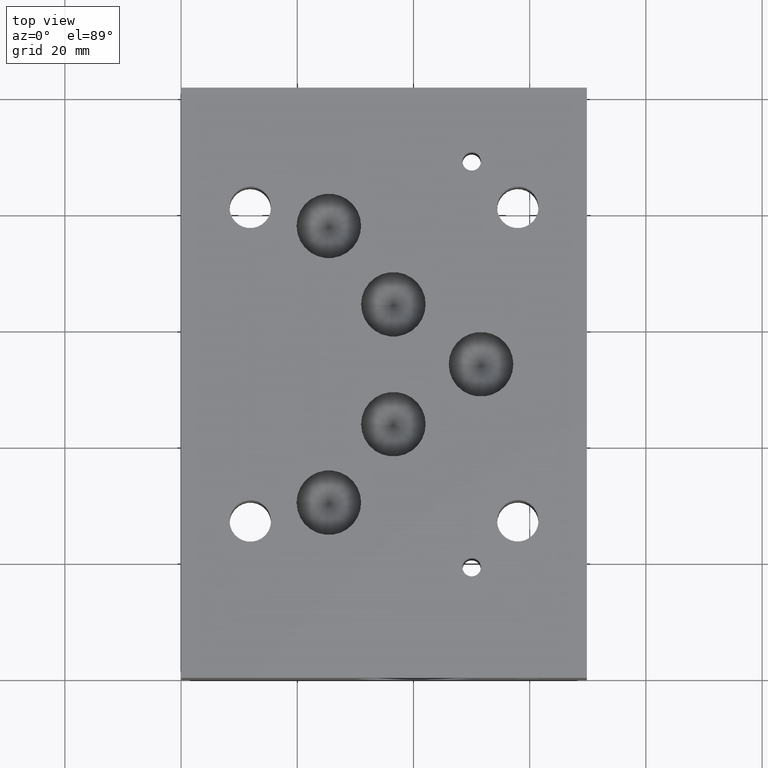
[diagram: clean part render]
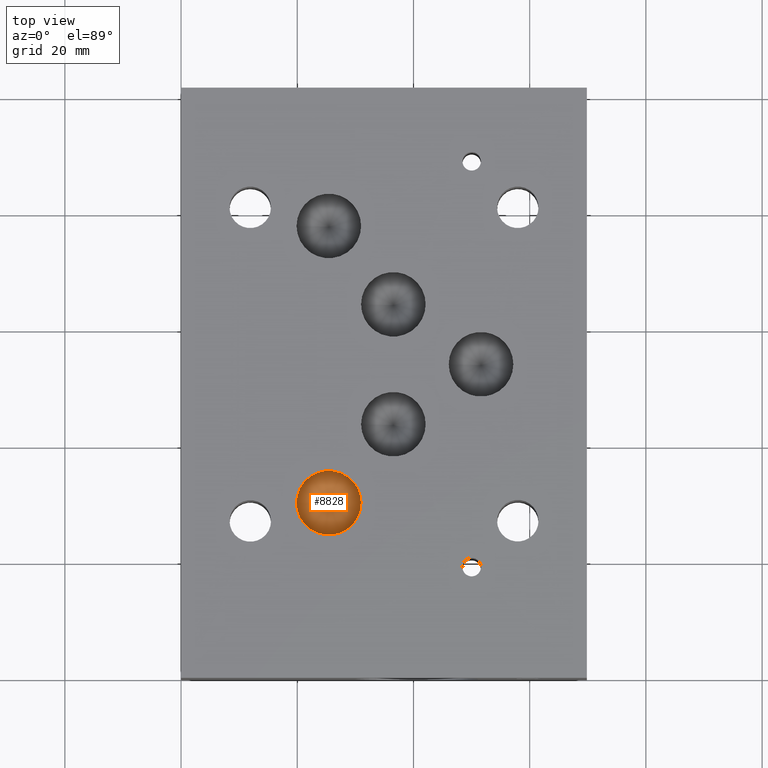
[diagram: same view with one face highlighted and labeled with its STEP entity id]
A machine part, top view. The second image highlights one B-rep face of the part: STEP entity #8828.
In plain terms, the highlighted conical surface has half-angle 60 deg.
Its self-contained STEP definition (entity closure, byte-faithful):
#67=CONICAL_SURFACE('',#9283,2.778125,1.0471975511966);
#143=CIRCLE('',#9284,5.55625);
#977=FACE_OUTER_BOUND('',#1496,.T.);
#1496=EDGE_LOOP('',(#7870,#7871,#7872));
#2433=LINE('',#14823,#3355);
#3355=VECTOR('',#11077,2.778125);
#4340=VERTEX_POINT('',#14820);
#4341=VERTEX_POINT('',#14822);
#5527=EDGE_CURVE('',#4340,#4340,#143,.T.);
#5528=EDGE_CURVE('',#4340,#4341,#2433,.T.);
#7870=ORIENTED_EDGE('',*,*,#5527,.T.);
#7871=ORIENTED_EDGE('',*,*,#5528,.T.);
#7872=ORIENTED_EDGE('',*,*,#5528,.F.);
#8828=ADVANCED_FACE('',(#977),#67,.F.);
#9283=AXIS2_PLACEMENT_3D('',#14819,#11073,#11074);
#9284=AXIS2_PLACEMENT_3D('',#14821,#11075,#11076);
#11073=DIRECTION('center_axis',(0.,0.,1.));
#11074=DIRECTION('ref_axis',(1.,0.,0.));
#11075=DIRECTION('center_axis',(0.,0.,1.));
#11076=DIRECTION('ref_axis',(1.,0.,0.));
#11077=DIRECTION('',(0.866025403784439,1.06057523872491E-16,-0.5));
#14819=CARTESIAN_POINT('Origin',(25.42032,30.1498,20.5881487834076));
#14820=CARTESIAN_POINT('',(19.86407,30.1498,22.1921));
#14821=CARTESIAN_POINT('Origin',(25.42032,30.1498,22.1921));
#14822=CARTESIAN_POINT('',(25.42032,30.1498,18.9841975668151));
#14823=CARTESIAN_POINT('',(22.642195,30.1498,20.5881487834076));